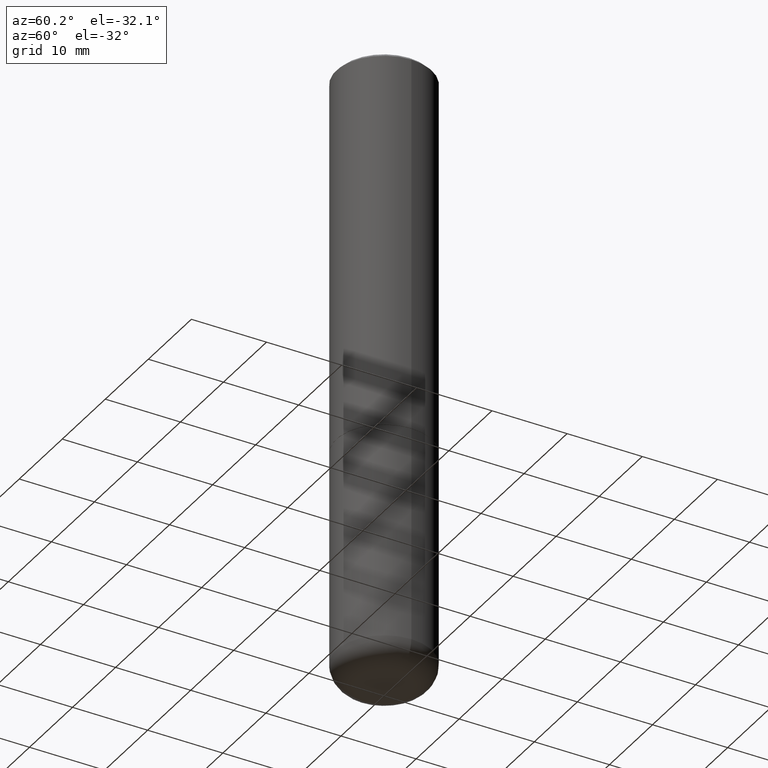
[diagram: clean part render]
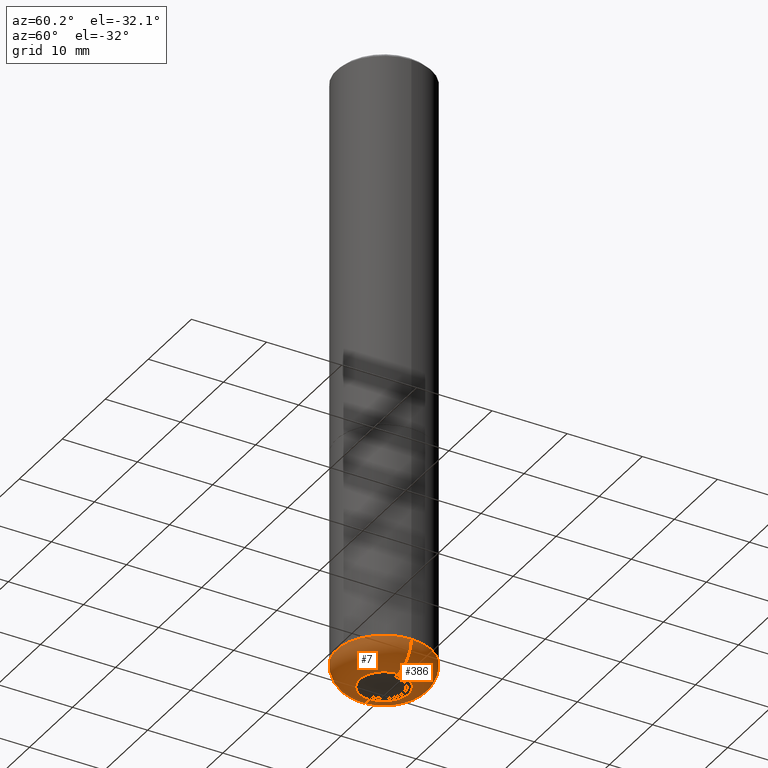
[diagram: same view with one multi-face feature highlighted, each face labeled with its STEP entity id]
A machine part, auxiliary view. The highlighted faces form ONE feature: a constant-radius fillet chain: 2 tangent blend faces with common blend radius 3.048 mm. The faces share edges in the B-rep.
Their STEP definitions:
[1] entity #7 (Torus):
#7 = ADVANCED_FACE ( 'NONE', ( #115 ), #190, .T. ) ;
#26 = ORIENTED_EDGE ( 'NONE', *, *, #153, .T. ) ;
#43 = CARTESIAN_POINT ( 'NONE',  ( 7.947773620101693940E-29, -1.134731435124022443E-14, -3.250000000000000000 ) ) ;
#45 = DIRECTION ( 'NONE',  ( -2.445468806185136597E-29, 3.491481338843145583E-15, 1.000000000000000000 ) ) ;
#56 = AXIS2_PLACEMENT_3D ( 'NONE', #310, #431, #392 ) ;
#58 = EDGE_LOOP ( 'NONE', ( #415, #26, #249, #379 ) ) ;
#64 = CARTESIAN_POINT ( 'NONE',  ( 0.2499999999999994449, -1.267409321338991461E-14, -3.130004569232299527 ) ) ;
#70 = CIRCLE ( 'NONE', #289, 0.1289528157401960140 ) ;
#78 = EDGE_CURVE ( 'NONE', #330, #457, #80, .T. ) ;
#80 = CIRCLE ( 'NONE', #56, 0.2499999999999994449 ) ;
#102 = VERTEX_POINT ( 'NONE', #117 ) ;
#115 = FACE_OUTER_BOUND ( 'NONE', #58, .T. ) ;
#117 = CARTESIAN_POINT ( 'NONE',  ( -0.1289528157401960140, -9.791522595504129181E-15, -3.250000000000000000 ) ) ;
#120 = CARTESIAN_POINT ( 'NONE',  ( 7.654328537274535481E-29, -1.092835254396835267E-14, -3.130004569232299527 ) ) ;
#123 = VERTEX_POINT ( 'NONE', #350 ) ;
#125 = DIRECTION ( 'NONE',  ( 1.000000000000000000, -6.982962677686264344E-15, 0.000000000000000000 ) ) ;
#144 = EDGE_CURVE ( 'NONE', #102, #330, #179, .T. ) ;
#153 = EDGE_CURVE ( 'NONE', #102, #123, #70, .T. ) ;
#158 = DIRECTION ( 'NONE',  ( -1.000000000000000000, 7.105427357601003436E-15, 0.000000000000000000 ) ) ;
#165 = DIRECTION ( 'NONE',  ( -2.445468806185136597E-29, 3.491481338843145583E-15, 1.000000000000000000 ) ) ;
#169 = CARTESIAN_POINT ( 'NONE',  ( 0.1300000000000002265, -1.183613769206756923E-14, -3.130004569232299527 ) ) ;
#175 = DIRECTION ( 'NONE',  ( 7.105427357601001859E-15, 1.000000000000000000, -3.491481338843145583E-15 ) ) ;
#176 = DIRECTION ( 'NONE',  ( -6.982962677686266711E-15, -1.000000000000000000, 3.491481338843145583E-15 ) ) ;
#179 = CIRCLE ( 'NONE', #437, 0.1199999999999995098 ) ;
#190 = TOROIDAL_SURFACE ( 'NONE', #258, 0.1300000000000002265, 0.1199999999999995098 ) ;
#239 = CIRCLE ( 'NONE', #304, 0.1199999999999995098 ) ;
#247 = DIRECTION ( 'NONE',  ( 1.000000000000000000, -6.982962677686273810E-15, 0.000000000000000000 ) ) ;
#249 = ORIENTED_EDGE ( 'NONE', *, *, #402, .T. ) ;
#258 = AXIS2_PLACEMENT_3D ( 'NONE', #120, #45, #348 ) ;
#289 = AXIS2_PLACEMENT_3D ( 'NONE', #43, #165, #247 ) ;
#304 = AXIS2_PLACEMENT_3D ( 'NONE', #169, #176, #125 ) ;
#310 = CARTESIAN_POINT ( 'NONE',  ( 7.654328537274535481E-29, -1.092835254396835267E-14, -3.130004569232299527 ) ) ;
#330 = VERTEX_POINT ( 'NONE', #433 ) ;
#348 = DIRECTION ( 'NONE',  ( 1.000000000000000000, -6.982962677686270655E-15, 4.883557194083114583E-29 ) ) ;
#350 = CARTESIAN_POINT ( 'NONE',  ( 0.1289528157401960140, -1.224778705073656802E-14, -3.250000000000000000 ) ) ;
#379 = ORIENTED_EDGE ( 'NONE', *, *, #78, .F. ) ;
#392 = DIRECTION ( 'NONE',  ( 1.000000000000000000, -6.982962677686263555E-15, 0.000000000000000000 ) ) ;
#402 = EDGE_CURVE ( 'NONE', #123, #457, #239, .T. ) ;
#415 = ORIENTED_EDGE ( 'NONE', *, *, #144, .F. ) ;
#431 = DIRECTION ( 'NONE',  ( -2.445468806185136597E-29, 3.491481338843145583E-15, 1.000000000000000000 ) ) ;
#433 = CARTESIAN_POINT ( 'NONE',  ( -0.2499999999999994449, -7.179300771427075001E-15, -3.130004569232299527 ) ) ;
#437 = AXIS2_PLACEMENT_3D ( 'NONE', #440, #175, #158 ) ;
#440 = CARTESIAN_POINT ( 'NONE',  ( -0.1300000000000002265, -1.000464698748022161E-14, -3.130004569232299527 ) ) ;
#457 = VERTEX_POINT ( 'NONE', #64 ) ;
[2] entity #386 (Torus):
#11 = AXIS2_PLACEMENT_3D ( 'NONE', #197, #83, #387 ) ;
#17 = DIRECTION ( 'NONE',  ( 1.000000000000000000, -6.982962677686273810E-15, 0.000000000000000000 ) ) ;
#21 = DIRECTION ( 'NONE',  ( -2.445468806185136597E-29, 3.491481338843145583E-15, 1.000000000000000000 ) ) ;
#34 = TOROIDAL_SURFACE ( 'NONE', #317, 0.1300000000000002265, 0.1199999999999995098 ) ;
#64 = CARTESIAN_POINT ( 'NONE',  ( 0.2499999999999994449, -1.267409321338991461E-14, -3.130004569232299527 ) ) ;
#83 = DIRECTION ( 'NONE',  ( -2.445468806185136597E-29, 3.491481338843145583E-15, 1.000000000000000000 ) ) ;
#92 = DIRECTION ( 'NONE',  ( -2.445468806185136597E-29, 3.491481338843145583E-15, 1.000000000000000000 ) ) ;
#102 = VERTEX_POINT ( 'NONE', #117 ) ;
#110 = ORIENTED_EDGE ( 'NONE', *, *, #447, .T. ) ;
#111 = EDGE_CURVE ( 'NONE', #457, #330, #422, .T. ) ;
#117 = CARTESIAN_POINT ( 'NONE',  ( -0.1289528157401960140, -9.791522595504129181E-15, -3.250000000000000000 ) ) ;
#123 = VERTEX_POINT ( 'NONE', #350 ) ;
#125 = DIRECTION ( 'NONE',  ( 1.000000000000000000, -6.982962677686264344E-15, 0.000000000000000000 ) ) ;
#144 = EDGE_CURVE ( 'NONE', #102, #330, #179, .T. ) ;
#150 = CIRCLE ( 'NONE', #382, 0.1289528157401960140 ) ;
#158 = DIRECTION ( 'NONE',  ( -1.000000000000000000, 7.105427357601003436E-15, 0.000000000000000000 ) ) ;
#169 = CARTESIAN_POINT ( 'NONE',  ( 0.1300000000000002265, -1.183613769206756923E-14, -3.130004569232299527 ) ) ;
#170 = EDGE_LOOP ( 'NONE', ( #110, #303, #476, #451 ) ) ;
#175 = DIRECTION ( 'NONE',  ( 7.105427357601001859E-15, 1.000000000000000000, -3.491481338843145583E-15 ) ) ;
#176 = DIRECTION ( 'NONE',  ( -6.982962677686266711E-15, -1.000000000000000000, 3.491481338843145583E-15 ) ) ;
#179 = CIRCLE ( 'NONE', #437, 0.1199999999999995098 ) ;
#197 = CARTESIAN_POINT ( 'NONE',  ( 7.654328537274535481E-29, -1.092835254396835267E-14, -3.130004569232299527 ) ) ;
#239 = CIRCLE ( 'NONE', #304, 0.1199999999999995098 ) ;
#303 = ORIENTED_EDGE ( 'NONE', *, *, #144, .T. ) ;
#304 = AXIS2_PLACEMENT_3D ( 'NONE', #169, #176, #125 ) ;
#317 = AXIS2_PLACEMENT_3D ( 'NONE', #475, #21, #409 ) ;
#322 = CARTESIAN_POINT ( 'NONE',  ( 7.947773620101693940E-29, -1.134731435124022443E-14, -3.250000000000000000 ) ) ;
#330 = VERTEX_POINT ( 'NONE', #433 ) ;
#350 = CARTESIAN_POINT ( 'NONE',  ( 0.1289528157401960140, -1.224778705073656802E-14, -3.250000000000000000 ) ) ;
#366 = FACE_OUTER_BOUND ( 'NONE', #170, .T. ) ;
#382 = AXIS2_PLACEMENT_3D ( 'NONE', #322, #92, #17 ) ;
#386 = ADVANCED_FACE ( 'NONE', ( #366 ), #34, .T. ) ;
#387 = DIRECTION ( 'NONE',  ( 1.000000000000000000, -6.982962677686263555E-15, 0.000000000000000000 ) ) ;
#402 = EDGE_CURVE ( 'NONE', #123, #457, #239, .T. ) ;
#409 = DIRECTION ( 'NONE',  ( 1.000000000000000000, -6.982962677686270655E-15, 4.883557194083114583E-29 ) ) ;
#422 = CIRCLE ( 'NONE', #11, 0.2499999999999994449 ) ;
#433 = CARTESIAN_POINT ( 'NONE',  ( -0.2499999999999994449, -7.179300771427075001E-15, -3.130004569232299527 ) ) ;
#437 = AXIS2_PLACEMENT_3D ( 'NONE', #440, #175, #158 ) ;
#440 = CARTESIAN_POINT ( 'NONE',  ( -0.1300000000000002265, -1.000464698748022161E-14, -3.130004569232299527 ) ) ;
#447 = EDGE_CURVE ( 'NONE', #123, #102, #150, .T. ) ;
#451 = ORIENTED_EDGE ( 'NONE', *, *, #402, .F. ) ;
#457 = VERTEX_POINT ( 'NONE', #64 ) ;
#475 = CARTESIAN_POINT ( 'NONE',  ( 7.654328537274535481E-29, -1.092835254396835267E-14, -3.130004569232299527 ) ) ;
#476 = ORIENTED_EDGE ( 'NONE', *, *, #111, .F. ) ;